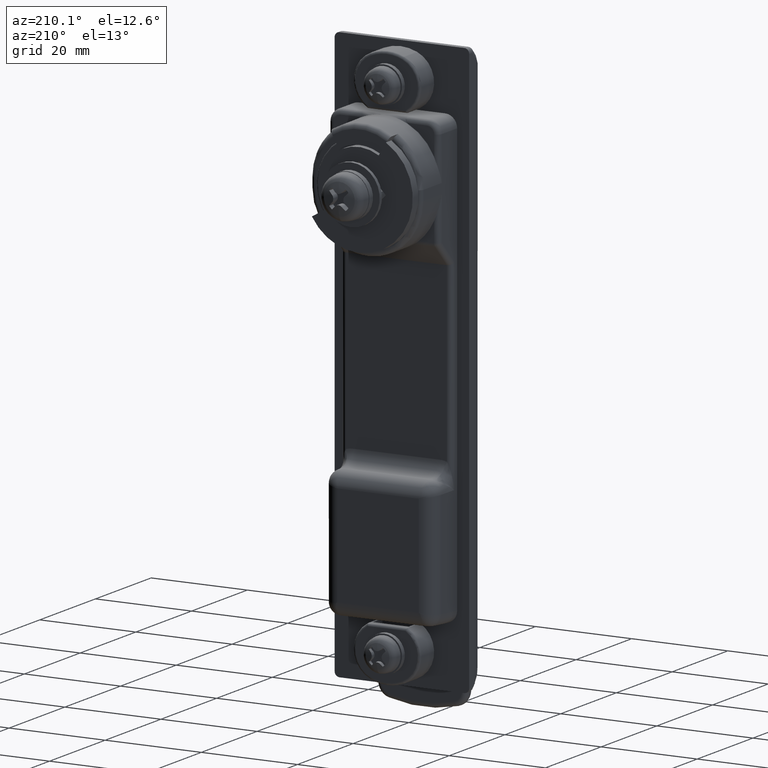
[diagram: clean part render]
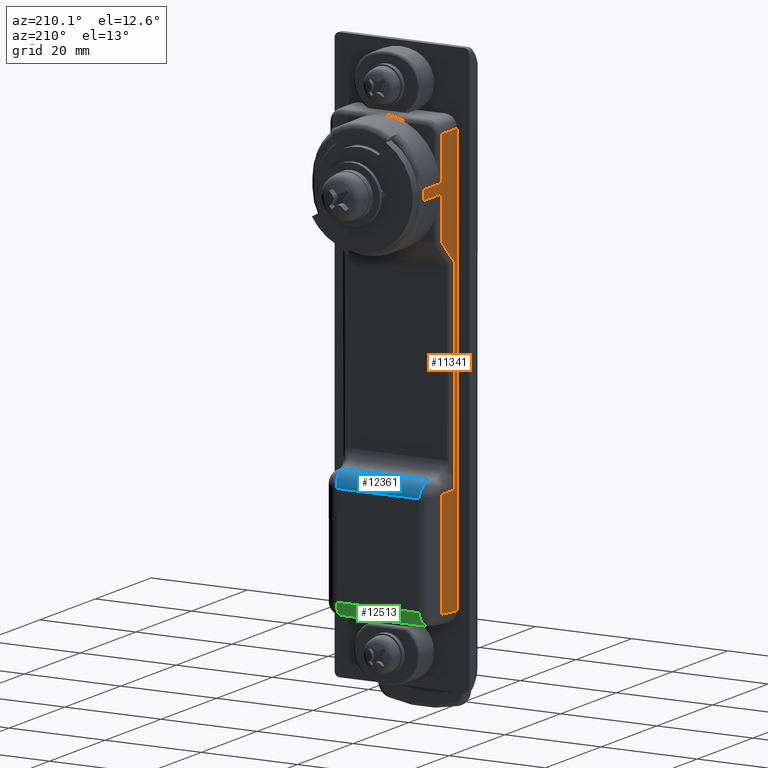
[diagram: same view with three faces highlighted in distinct colors, each labeled with its STEP entity id]
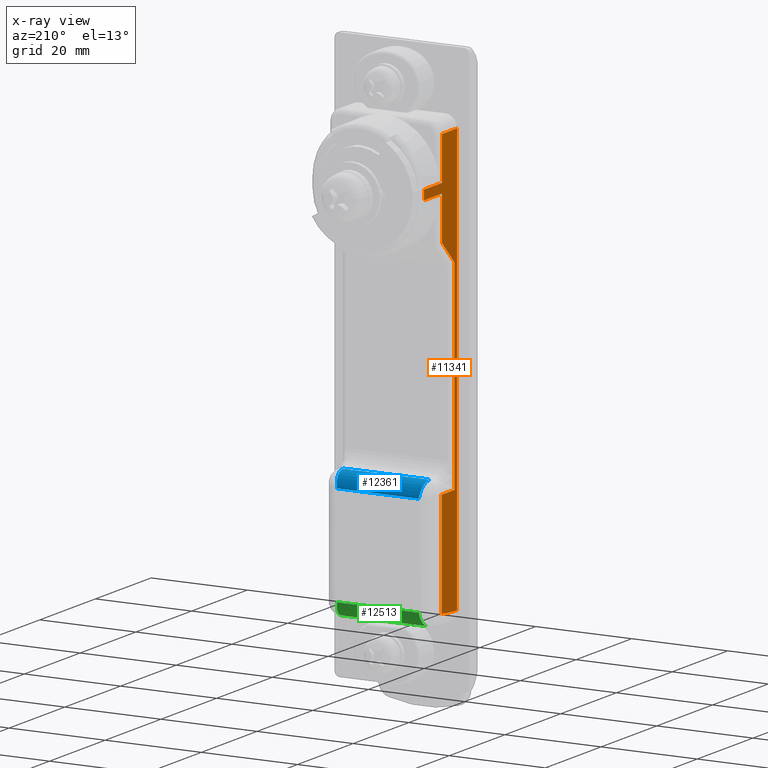
[diagram: x-ray of the same camera — body ghosted, the three highlighted faces saturated]
A machine part, auxiliary view with three faces highlighted in distinct colors.
The next image is the same camera in x-ray (body ghosted, the three faces saturated) — at least one of them is partly hidden behind the body in this view.
Their STEP definitions:

[orange] entity #11341 — the highlighted planar face has unit normal (-1, 0, 0).
#6146 = DIRECTION ( 'NONE',  ( 0.0000000000000000000, 0.0000000000000000000, -1.000000000000000000 ) ) ;
#6147 = VECTOR ( 'NONE', #6146, 1000.000000000000000 ) ;
#6148 = CARTESIAN_POINT ( 'NONE',  ( -11.98421101603910100, 11.50000000000000000, 1.000000000021002100 ) ) ;
#6149 = LINE ( 'NONE', #6148, #6147 ) ;
#6172 = CARTESIAN_POINT ( 'NONE',  ( -16.49999999999920100, 11.50000000000000000, -14.53826813408368000 ) ) ;
#6173 = CARTESIAN_POINT ( 'NONE',  ( -11.98421101603910100, 11.50000000000000000, -10.02247915012355900 ) ) ;
#6174 = DIRECTION ( 'NONE',  ( 0.0000000000000000000, 0.0000000000000000000, -1.000000000000000000 ) ) ;
#6175 = VECTOR ( 'NONE', #6174, 1000.000000000000000 ) ;
#6176 = CARTESIAN_POINT ( 'NONE',  ( -11.98421101603910100, 11.50000000000000000, -10.43669271249666200 ) ) ;
#6177 = LINE ( 'NONE', #6176, #6175 ) ;
#6178 = CARTESIAN_POINT ( 'NONE',  ( -11.98421101603910100, 11.50000000000000000, -0.9999999999791980800 ) ) ;
#6179 = DIRECTION ( 'NONE',  ( 1.000000000000000000, 0.0000000000000000000, 0.0000000000000000000 ) ) ;
#6180 = VECTOR ( 'NONE', #6179, 1000.000000000000000 ) ;
#6181 = CARTESIAN_POINT ( 'NONE',  ( -1002.300000000000000, 11.50000000000000000, -0.9999999999791980800 ) ) ;
#6182 = LINE ( 'NONE', #6181, #6180 ) ;
#6183 = CARTESIAN_POINT ( 'NONE',  ( -5.499999999999169600, 11.50000000000000000, -0.9999999999791980800 ) ) ;
#6184 = DIRECTION ( 'NONE',  ( 0.0000000000000000000, 0.0000000000000000000, -1.000000000000000000 ) ) ;
#6185 = VECTOR ( 'NONE', #6184, 1000.000000000000000 ) ;
#6186 = CARTESIAN_POINT ( 'NONE',  ( -5.499999999999199800, 11.50000000000000000, -0.9999999999791980800 ) ) ;
#6187 = LINE ( 'NONE', #6186, #6185 ) ;
#6188 = CARTESIAN_POINT ( 'NONE',  ( -11.98421101603908100, 11.50000000000000000, 1.000000000021004100 ) ) ;
#6189 = CARTESIAN_POINT ( 'NONE',  ( -5.499999999999169600, 11.50000000000000000, 1.000000000021004100 ) ) ;
#6190 = DIRECTION ( 'NONE',  ( 1.000000000000000000, 0.0000000000000000000, 0.0000000000000000000 ) ) ;
#6191 = VECTOR ( 'NONE', #6190, 1000.000000000000000 ) ;
#6192 = CARTESIAN_POINT ( 'NONE',  ( -1002.300000000000000, 11.50000000000000000, 1.000000000021004100 ) ) ;
#6193 = LINE ( 'NONE', #6192, #6191 ) ;
#6323 = DIRECTION ( 'NONE',  ( 1.000000000000000000, 0.0000000000000000000, 0.0000000000000000000 ) ) ;
#6324 = DIRECTION ( 'NONE',  ( 0.0000000000000000000, 1.000000000000000000, 0.0000000000000000000 ) ) ;
#6325 = CARTESIAN_POINT ( 'NONE',  ( 0.0000000000000000000, 11.50000000000000000, 0.0000000000000000000 ) ) ;
#6326 = AXIS2_PLACEMENT_3D ( 'NONE', #6325, #6324, #6323 ) ;
#6327 = PLANE ( 'NONE',  #6326 ) ;
#6328 = FACE_OUTER_BOUND ( 'NONE', #11168, .T. ) ;
#6382 = CARTESIAN_POINT ( 'NONE',  ( -11.89999999999919900, 11.50000000000000000, -56.49999999998869500 ) ) ;
#6383 = CARTESIAN_POINT ( 'NONE',  ( -16.49999999999920100, 11.50000000000000000, -56.49999999998869500 ) ) ;
#6384 = DIRECTION ( 'NONE',  ( 0.0000000000000000000, 0.0000000000000000000, -1.000000000000000000 ) ) ;
#6385 = VECTOR ( 'NONE', #6384, 1000.000000000000000 ) ;
#6386 = CARTESIAN_POINT ( 'NONE',  ( -16.49999999999920100, 11.50000000000000000, -56.49999999998869500 ) ) ;
#6387 = LINE ( 'NONE', #6386, #6385 ) ;
#6388 = DIRECTION ( 'NONE',  ( -0.7071067811865474600, 0.0000000000000000000, -0.7071067811865474600 ) ) ;
#6389 = VECTOR ( 'NONE', #6388, 1000.000000000000100 ) ;
#6390 = CARTESIAN_POINT ( 'NONE',  ( -16.20710678118575000, 11.50000000000000000, -14.24537491527024200 ) ) ;
#6391 = LINE ( 'NONE', #6390, #6389 ) ;
#6731 = DIRECTION ( 'NONE',  ( 0.0000000000000000000, 0.0000000000000000000, -1.000000000000000000 ) ) ;
#6732 = VECTOR ( 'NONE', #6731, 1000.000000000000000 ) ;
#6733 = CARTESIAN_POINT ( 'NONE',  ( -11.89999999999919900, 11.50000000000000000, -78.11376319190559100 ) ) ;
#6734 = LINE ( 'NONE', #6733, #6732 ) ;
#6736 = DIRECTION ( 'NONE',  ( 1.000000000000000000, 0.0000000000000000000, 0.0000000000000000000 ) ) ;
#6737 = VECTOR ( 'NONE', #6736, 1000.000000000000000 ) ;
#6738 = CARTESIAN_POINT ( 'NONE',  ( -8.899999999999209900, 11.50000000000000000, -56.49999999998869500 ) ) ;
#6739 = LINE ( 'NONE', #6738, #6737 ) ;
#6935 = CARTESIAN_POINT ( 'NONE',  ( -17.49999999999920100, 11.50000000000000000, 9.999999999996308700 ) ) ;
#6936 = DIRECTION ( 'NONE',  ( 0.0000000000000000000, 0.0000000000000000000, -1.000000000000000000 ) ) ;
#6937 = VECTOR ( 'NONE', #6936, 1000.000000000000000 ) ;
#6938 = CARTESIAN_POINT ( 'NONE',  ( -17.49999999999920100, 11.50000000000000000, 0.0000000000000000000 ) ) ;
#6939 = LINE ( 'NONE', #6938, #6937 ) ;
#6940 = CARTESIAN_POINT ( 'NONE',  ( -17.49999999999920100, 11.50000000000000000, -78.93516326708339600 ) ) ;
#6941 = DIRECTION ( 'NONE',  ( 0.0000000000000000000, 0.0000000000000000000, 1.000000000000000000 ) ) ;
#6942 = DIRECTION ( 'NONE',  ( 0.0000000000000000000, 1.000000000000000000, 0.0000000000000000000 ) ) ;
#6943 = CARTESIAN_POINT ( 'NONE',  ( -20.69999999999869900, 11.50000000000000000, -6.991740519879390700E-012 ) ) ;
#6944 = AXIS2_PLACEMENT_3D ( 'NONE', #6943, #6942, #6941 ) ;
#6945 = CIRCLE ( 'NONE', #6944, 79.00000000000000000 ) ;
#6946 = CARTESIAN_POINT ( 'NONE',  ( -11.89999999999919900, 11.50000000000000000, -78.50834350564979000 ) ) ;
#7023 = CARTESIAN_POINT ( 'NONE',  ( -11.98421101603910100, 11.50000000000000000, 9.999999999997490000 ) ) ;
#7024 = DIRECTION ( 'NONE',  ( 1.000000000000000000, 0.0000000000000000000, 2.140520017021305000E-013 ) ) ;
#7025 = VECTOR ( 'NONE', #7024, 1000.000000000000000 ) ;
#7026 = CARTESIAN_POINT ( 'NONE',  ( -10.98421101603856100, 11.50000000000000000, 9.999999999997699600 ) ) ;
#7027 = LINE ( 'NONE', #7026, #7025 ) ;
#11168 = EDGE_LOOP ( 'NONE', ( #11169, #11173, #11176, #11179, #11323, #11325, #11486, #11488, #11491, #11494, #11497, #11500 ) ) ;
#11169 = ORIENTED_EDGE ( 'NONE', *, *, #11170, .T. ) ;
#11170 = EDGE_CURVE ( 'NONE', #11171, #11172, #6193, .T. ) ;
#11171 = VERTEX_POINT ( 'NONE', #6188 ) ;
#11172 = VERTEX_POINT ( 'NONE', #6189 ) ;
#11173 = ORIENTED_EDGE ( 'NONE', *, *, #11174, .T. ) ;
#11174 = EDGE_CURVE ( 'NONE', #11172, #11175, #6187, .T. ) ;
#11175 = VERTEX_POINT ( 'NONE', #6183 ) ;
#11176 = ORIENTED_EDGE ( 'NONE', *, *, #11177, .F. ) ;
#11177 = EDGE_CURVE ( 'NONE', #11178, #11175, #6182, .T. ) ;
#11178 = VERTEX_POINT ( 'NONE', #6178 ) ;
#11179 = ORIENTED_EDGE ( 'NONE', *, *, #11180, .T. ) ;
#11180 = EDGE_CURVE ( 'NONE', #11178, #11181, #6177, .T. ) ;
#11181 = VERTEX_POINT ( 'NONE', #6173 ) ;
#11182 = VERTEX_POINT ( 'NONE', #6172 ) ;
#11198 = EDGE_CURVE ( 'NONE', #11499, #11171, #6149, .T. ) ;
#11323 = ORIENTED_EDGE ( 'NONE', *, *, #11324, .T. ) ;
#11324 = EDGE_CURVE ( 'NONE', #11181, #11182, #6391, .T. ) ;
#11325 = ORIENTED_EDGE ( 'NONE', *, *, #11326, .T. ) ;
#11326 = EDGE_CURVE ( 'NONE', #11182, #11327, #6387, .T. ) ;
#11327 = VERTEX_POINT ( 'NONE', #6383 ) ;
#11328 = VERTEX_POINT ( 'NONE', #6382 ) ;
#11341 = ADVANCED_FACE ( 'NONE', ( #6328 ), #6327, .T. ) ;
#11486 = ORIENTED_EDGE ( 'NONE', *, *, #11487, .T. ) ;
#11487 = EDGE_CURVE ( 'NONE', #11327, #11328, #6739, .T. ) ;
#11488 = ORIENTED_EDGE ( 'NONE', *, *, #11489, .T. ) ;
#11489 = EDGE_CURVE ( 'NONE', #11328, #11490, #6734, .T. ) ;
#11490 = VERTEX_POINT ( 'NONE', #6946 ) ;
#11491 = ORIENTED_EDGE ( 'NONE', *, *, #11492, .T. ) ;
#11492 = EDGE_CURVE ( 'NONE', #11490, #11493, #6945, .T. ) ;
#11493 = VERTEX_POINT ( 'NONE', #6940 ) ;
#11494 = ORIENTED_EDGE ( 'NONE', *, *, #11495, .F. ) ;
#11495 = EDGE_CURVE ( 'NONE', #11496, #11493, #6939, .T. ) ;
#11496 = VERTEX_POINT ( 'NONE', #6935 ) ;
#11497 = ORIENTED_EDGE ( 'NONE', *, *, #11498, .T. ) ;
#11498 = EDGE_CURVE ( 'NONE', #11496, #11499, #7027, .T. ) ;
#11499 = VERTEX_POINT ( 'NONE', #7023 ) ;
#11500 = ORIENTED_EDGE ( 'NONE', *, *, #11198, .T. ) ;

[blue] entity #12361 — the highlighted cylindrical surface (edge-blend (fillet) strip) has radius 3 mm, axis along (1, 0, 0).
#328 = CARTESIAN_POINT ( 'NONE',  ( -8.899999999999209900, -8.500000000000000000, -56.99999999998869500 ) ) ;
#329 = CARTESIAN_POINT ( 'NONE',  ( -8.899999999999197400, -8.792893218813453900, -55.24264068710798600 ) ) ;
#330 = CARTESIAN_POINT ( 'NONE',  ( -10.14264068711848300, -9.000000000000003600, -53.99999999998869500 ) ) ;
#331 = CARTESIAN_POINT ( 'NONE',  ( -11.89999999999919900, -9.000000000000000000, -53.99999999998869500 ) ) ;
#332 =( BOUNDED_CURVE ( )  B_SPLINE_CURVE ( 3, ( #331, #330, #329, #328 ),
 .UNSPECIFIED., .F., .T. ) 
 B_SPLINE_CURVE_WITH_KNOTS ( ( 4, 4 ),
 ( 3.141592653589793100, 4.712388980384689700 ),
 .UNSPECIFIED. ) 
 CURVE ( )  GEOMETRIC_REPRESENTATION_ITEM ( )  RATIONAL_B_SPLINE_CURVE ( ( 1.000000000000000000, 0.8047378541243649400, 0.8047378541243649400, 1.000000000000000000 ) ) 
 REPRESENTATION_ITEM ( '' )  );
#7174 = CARTESIAN_POINT ( 'NONE',  ( -8.899999999999209900, 8.500000000000000000, -56.99999999998869500 ) ) ;
#7267 = CARTESIAN_POINT ( 'NONE',  ( -11.89999999999919900, 9.000000000000000000, -53.99999999998869500 ) ) ;
#7282 = CARTESIAN_POINT ( 'NONE',  ( -8.899999999999209900, -8.500000000000000000, -56.99999999998869500 ) ) ;
#7283 = DIRECTION ( 'NONE',  ( 0.0000000000000000000, -1.000000000000000000, 0.0000000000000000000 ) ) ;
#7284 = VECTOR ( 'NONE', #7283, 1000.000000000000000 ) ;
#7285 = CARTESIAN_POINT ( 'NONE',  ( -8.899999999999209900, 988.5000000000000000, -56.99999999998869500 ) ) ;
#7286 = LINE ( 'NONE', #7285, #7284 ) ;
#7634 = DIRECTION ( 'NONE',  ( 0.0000000000000000000, 1.000000000000000000, 0.0000000000000000000 ) ) ;
#7635 = VECTOR ( 'NONE', #7634, 1000.000000000000000 ) ;
#7636 = CARTESIAN_POINT ( 'NONE',  ( -11.89999999999919900, 988.5000000000000000, -53.99999999998869500 ) ) ;
#7637 = LINE ( 'NONE', #7636, #7635 ) ;
#7638 = CARTESIAN_POINT ( 'NONE',  ( -11.89999999999919900, -9.000000000000000000, -53.99999999998869500 ) ) ;
#11694 = VERTEX_POINT ( 'NONE', #7174 ) ;
#11696 = EDGE_CURVE ( 'NONE', #11694, #11697, #7286, .T. ) ;
#11697 = VERTEX_POINT ( 'NONE', #7282 ) ;
#11704 = VERTEX_POINT ( 'NONE', #7267 ) ;
#11789 = VERTEX_POINT ( 'NONE', #7638 ) ;
#11791 = EDGE_CURVE ( 'NONE', #11789, #11704, #7637, .T. ) ;
#12361 = ADVANCED_FACE ( 'NONE', ( #19794 ), #19853, .T. ) ;
#12362 = EDGE_LOOP ( 'NONE', ( #12363, #12364, #12365, #12367 ) ) ;
#12363 = ORIENTED_EDGE ( 'NONE', *, *, #12387, .T. ) ;
#12364 = ORIENTED_EDGE ( 'NONE', *, *, #11696, .F. ) ;
#12365 = ORIENTED_EDGE ( 'NONE', *, *, #12366, .F. ) ;
#12366 = EDGE_CURVE ( 'NONE', #11704, #11694, #19848, .T. ) ;
#12367 = ORIENTED_EDGE ( 'NONE', *, *, #11791, .F. ) ;
#12387 = EDGE_CURVE ( 'NONE', #11789, #11697, #332, .T. ) ;
#19794 = FACE_OUTER_BOUND ( 'NONE', #12362, .T. ) ;
#19844 = CARTESIAN_POINT ( 'NONE',  ( -8.899999999999209900, 8.500000000000000000, -56.99999999998869500 ) ) ;
#19845 = CARTESIAN_POINT ( 'NONE',  ( -8.899999999999201000, 8.792893218813290400, -55.24264068710798600 ) ) ;
#19846 = CARTESIAN_POINT ( 'NONE',  ( -10.14264068711848700, 8.999999999999722900, -53.99999999998869500 ) ) ;
#19847 = CARTESIAN_POINT ( 'NONE',  ( -11.89999999999919900, 9.000000000000000000, -53.99999999998869500 ) ) ;
#19848 =( BOUNDED_CURVE ( )  B_SPLINE_CURVE ( 3, ( #19847, #19846, #19845, #19844 ),
 .UNSPECIFIED., .F., .T. ) 
 B_SPLINE_CURVE_WITH_KNOTS ( ( 4, 4 ),
 ( 3.141592653589793100, 4.712388980384689700 ),
 .UNSPECIFIED. ) 
 CURVE ( )  GEOMETRIC_REPRESENTATION_ITEM ( )  RATIONAL_B_SPLINE_CURVE ( ( 1.000000000000000000, 0.8047378541243649400, 0.8047378541243649400, 1.000000000000000000 ) ) 
 REPRESENTATION_ITEM ( '' )  );
#19850 = DIRECTION ( 'NONE',  ( 0.0000000000000000000, 0.0000000000000000000, -1.000000000000000000 ) ) ;
#19851 = DIRECTION ( 'NONE',  ( 0.0000000000000000000, -1.000000000000000000, 0.0000000000000000000 ) ) ;
#19852 = AXIS2_PLACEMENT_3D ( 'NONE', #19854, #19851, #19850 ) ;
#19853 = CYLINDRICAL_SURFACE ( 'NONE', #19852, 3.000000000000002700 ) ;
#19854 = CARTESIAN_POINT ( 'NONE',  ( -11.89999999999919900, 988.5000000000000000, -56.99999999998869500 ) ) ;

[green] entity #12513 — the highlighted cylindrical surface (edge-blend (fillet) strip) has radius 3 mm, axis along (1, 0, 0).
#3328 = CARTESIAN_POINT ( 'NONE',  ( -11.56369426751513900, 8.996848357546980400, -80.98628228017210500 ) ) ;
#3329 = CARTESIAN_POINT ( 'NONE',  ( -9.969165693327267900, 8.966867764655400900, -80.80639872282394300 ) ) ;
#3330 = CARTESIAN_POINT ( 'NONE',  ( -8.899999999999201000, 8.767440516133080000, -79.60983523168934500 ) ) ;
#3331 = CARTESIAN_POINT ( 'NONE',  ( -8.899999999999209900, 8.500000000000000000, -78.00519213488999500 ) ) ;
#3332 =( BOUNDED_CURVE ( )  B_SPLINE_CURVE ( 3, ( #3331, #3330, #3329, #3328 ),
 .UNSPECIFIED., .F., .T. ) 
 B_SPLINE_CURVE_WITH_KNOTS ( ( 4, 4 ),
 ( 1.570796326794896600, 3.029254610530062400 ),
 .UNSPECIFIED. ) 
 CURVE ( )  GEOMETRIC_REPRESENTATION_ITEM ( )  RATIONAL_B_SPLINE_CURVE ( ( 1.000000000000000000, 0.8304588285171773400, 0.8304588285171773400, 1.000000000000000000 ) ) 
 REPRESENTATION_ITEM ( '' )  );
#3335 = DIRECTION ( 'NONE',  ( 0.0000000000000000000, 0.0000000000000000000, -1.000000000000000000 ) ) ;
#3336 = DIRECTION ( 'NONE',  ( 0.0000000000000000000, -1.000000000000000000, 0.0000000000000000000 ) ) ;
#3337 = CARTESIAN_POINT ( 'NONE',  ( -11.89999999999919900, 988.5000000000000000, -78.00519213488999500 ) ) ;
#3338 = AXIS2_PLACEMENT_3D ( 'NONE', #3337, #3336, #3335 ) ;
#3339 = CYLINDRICAL_SURFACE ( 'NONE', #3338, 3.000000000000002700 ) ;
#3344 = FACE_OUTER_BOUND ( 'NONE', #12514, .T. ) ;
#4787 = CARTESIAN_POINT ( 'NONE',  ( -11.56369426751513900, -8.996848357547030200, -80.98628228017210500 ) ) ;
#4788 = CARTESIAN_POINT ( 'NONE',  ( -9.969165693327259000, -8.966867764655660300, -80.80639872282394300 ) ) ;
#4789 = CARTESIAN_POINT ( 'NONE',  ( -8.899999999999197400, -8.767440516133229200, -79.60983523168936000 ) ) ;
#4790 = CARTESIAN_POINT ( 'NONE',  ( -8.899999999999209900, -8.500000000000000000, -78.00519213488999500 ) ) ;
#4791 =( BOUNDED_CURVE ( )  B_SPLINE_CURVE ( 3, ( #4790, #4789, #4788, #4787 ),
 .UNSPECIFIED., .F., .F. ) 
 B_SPLINE_CURVE_WITH_KNOTS ( ( 4, 4 ),
 ( 4.712388980384689700, 6.170847264119853300 ),
 .UNSPECIFIED. ) 
 CURVE ( )  GEOMETRIC_REPRESENTATION_ITEM ( )  RATIONAL_B_SPLINE_CURVE ( ( 1.000000000000000000, 0.8304588285171777800, 0.8304588285171777800, 1.000000000000000000 ) ) 
 REPRESENTATION_ITEM ( '' )  );
#6974 = DIRECTION ( 'NONE',  ( 0.0000000000000000000, 1.000000000000000000, 0.0000000000000000000 ) ) ;
#6975 = VECTOR ( 'NONE', #6974, 1000.000000000000000 ) ;
#6976 = CARTESIAN_POINT ( 'NONE',  ( -8.899999999999209900, 988.5000000000000000, -78.00519213488999500 ) ) ;
#6977 = LINE ( 'NONE', #6976, #6975 ) ;
#7482 = DIRECTION ( 'NONE',  ( 0.0000000000000000000, -1.000000000000000000, 0.0000000000000000000 ) ) ;
#7483 = CARTESIAN_POINT ( 'NONE',  ( -11.56369426751513900, 988.5000000000000000, -80.98628228017210500 ) ) ;
#7484 = LINE ( 'NONE', #7483, #7659 ) ;
#7489 = CARTESIAN_POINT ( 'NONE',  ( -11.56369426751513900, 8.996848357546980400, -80.98628228017210500 ) ) ;
#7658 = CARTESIAN_POINT ( 'NONE',  ( -11.56369426751513900, -8.996848357547030200, -80.98628228017210500 ) ) ;
#7659 = VECTOR ( 'NONE', #7482, 1000.000000000000000 ) ;
#7663 = CARTESIAN_POINT ( 'NONE',  ( -8.899999999999209900, 8.500000000000000000, -78.00519213488999500 ) ) ;
#7664 = CARTESIAN_POINT ( 'NONE',  ( -8.899999999999209900, -8.500000000000000000, -78.00519213488999500 ) ) ;
#11710 = EDGE_CURVE ( 'NONE', #11711, #11712, #6977, .T. ) ;
#11711 = VERTEX_POINT ( 'NONE', #7664 ) ;
#11712 = VERTEX_POINT ( 'NONE', #7663 ) ;
#11775 = VERTEX_POINT ( 'NONE', #7489 ) ;
#11777 = EDGE_CURVE ( 'NONE', #11775, #11778, #7484, .T. ) ;
#11778 = VERTEX_POINT ( 'NONE', #7658 ) ;
#12513 = ADVANCED_FACE ( 'NONE', ( #3344 ), #3339, .T. ) ;
#12514 = EDGE_LOOP ( 'NONE', ( #12515, #12516, #12517, #12519 ) ) ;
#12515 = ORIENTED_EDGE ( 'NONE', *, *, #12569, .T. ) ;
#12516 = ORIENTED_EDGE ( 'NONE', *, *, #11777, .F. ) ;
#12517 = ORIENTED_EDGE ( 'NONE', *, *, #12518, .F. ) ;
#12518 = EDGE_CURVE ( 'NONE', #11712, #11775, #3332, .T. ) ;
#12519 = ORIENTED_EDGE ( 'NONE', *, *, #11710, .F. ) ;
#12569 = EDGE_CURVE ( 'NONE', #11711, #11778, #4791, .T. ) ;